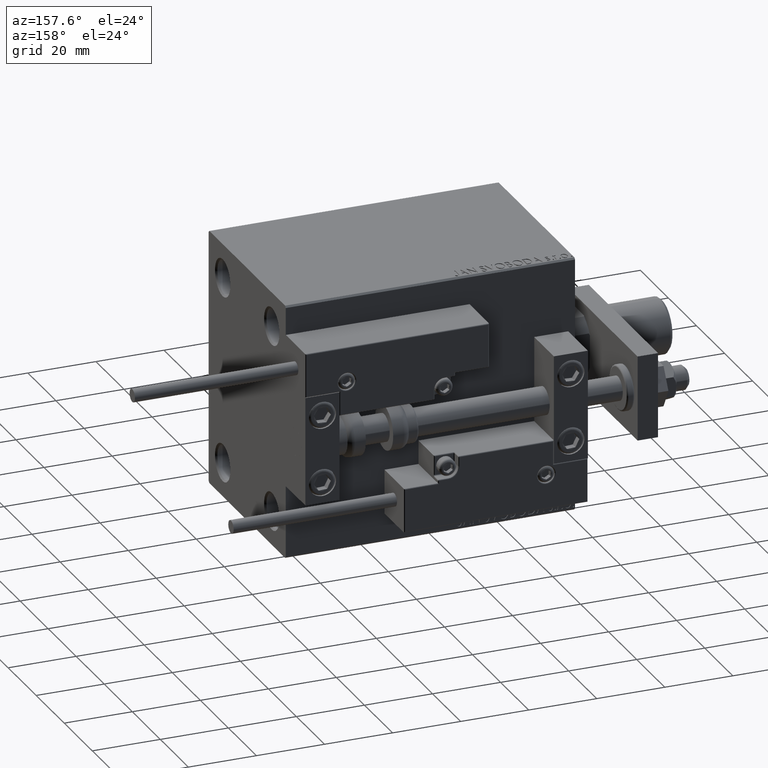
[diagram: clean part render]
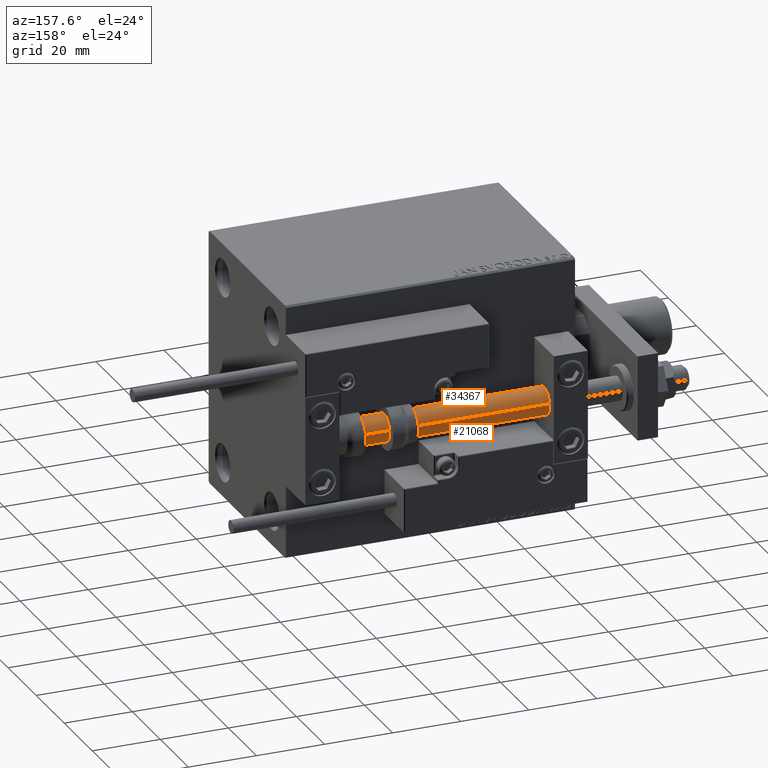
[diagram: same view with one multi-face feature highlighted, each face labeled with its STEP entity id]
A machine part, auxiliary view. The highlighted faces form ONE feature: a constant-radius fillet chain: 2 tangent blend faces with common blend radius 4 mm. The faces share edges in the B-rep.
Their STEP definitions:
[1] entity #21068 (Cylinder):
#1239 = CARTESIAN_POINT ( 'NONE',  ( -4.000000000000000000, 0.000000000000000000, 85.00000000000000000 ) ) ;
#1651 = CARTESIAN_POINT ( 'NONE',  ( -4.000000000000000000, 0.000000000000000000, 85.00000000000000000 ) ) ;
#2633 = LINE ( 'NONE', #50290, #46008 ) ;
#2735 = CIRCLE ( 'NONE', #21900, 4.000000000000000000 ) ;
#4570 = ORIENTED_EDGE ( 'NONE', *, *, #25600, .F. ) ;
#6183 = DIRECTION ( 'NONE',  ( 0.000000000000000000, 0.000000000000000000, 1.000000000000000000 ) ) ;
#11822 = CARTESIAN_POINT ( 'NONE',  ( 0.000000000000000000, 0.000000000000000000, 85.00000000000000000 ) ) ;
#12532 = AXIS2_PLACEMENT_3D ( 'NONE', #18912, #42846, #23058 ) ;
#15225 = ORIENTED_EDGE ( 'NONE', *, *, #24719, .T. ) ;
#15821 = ORIENTED_EDGE ( 'NONE', *, *, #43596, .F. ) ;
#16434 = EDGE_CURVE ( 'NONE', #32545, #17587, #29138, .T. ) ;
#17573 = DIRECTION ( 'NONE',  ( -0.000000000000000000, -0.000000000000000000, -1.000000000000000000 ) ) ;
#17587 = VERTEX_POINT ( 'NONE', #37903 ) ;
#18912 = CARTESIAN_POINT ( 'NONE',  ( 0.000000000000000000, 0.000000000000000000, 2.000000000000029310 ) ) ;
#21068 = ADVANCED_FACE ( 'NONE', ( #34041 ), #30135, .T. ) ;
#21900 = AXIS2_PLACEMENT_3D ( 'NONE', #11822, #6183, #27190 ) ;
#23058 = DIRECTION ( 'NONE',  ( 1.000000000000000000, 0.000000000000000000, 0.000000000000000000 ) ) ;
#24719 = EDGE_CURVE ( 'NONE', #39331, #32545, #37346, .T. ) ;
#25051 = AXIS2_PLACEMENT_3D ( 'NONE', #30900, #42871, #38959 ) ;
#25234 = ORIENTED_EDGE ( 'NONE', *, *, #16434, .T. ) ;
#25600 = EDGE_CURVE ( 'NONE', #39331, #41306, #2735, .T. ) ;
#27190 = DIRECTION ( 'NONE',  ( 1.000000000000000000, 0.000000000000000000, 0.000000000000000000 ) ) ;
#28467 = CARTESIAN_POINT ( 'NONE',  ( -4.000000000000000000, 0.000000000000000000, 2.000000000000029310 ) ) ;
#29138 = CIRCLE ( 'NONE', #12532, 4.000000000000000000 ) ;
#30135 = CYLINDRICAL_SURFACE ( 'NONE', #25051, 4.000000000000000000 ) ;
#30900 = CARTESIAN_POINT ( 'NONE',  ( 0.000000000000000000, 0.000000000000000000, 85.00000000000000000 ) ) ;
#31802 = VECTOR ( 'NONE', #17573, 1000.000000000000000 ) ;
#32545 = VERTEX_POINT ( 'NONE', #28467 ) ;
#34041 = FACE_OUTER_BOUND ( 'NONE', #38497, .T. ) ;
#37346 = LINE ( 'NONE', #1651, #31802 ) ;
#37903 = CARTESIAN_POINT ( 'NONE',  ( 4.000000000000000000, 4.898587196589412829E-16, 2.000000000000029310 ) ) ;
#38497 = EDGE_LOOP ( 'NONE', ( #15821, #4570, #15225, #25234 ) ) ;
#38959 = DIRECTION ( 'NONE',  ( -1.000000000000000000, 0.000000000000000000, 0.000000000000000000 ) ) ;
#39331 = VERTEX_POINT ( 'NONE', #1239 ) ;
#41306 = VERTEX_POINT ( 'NONE', #49019 ) ;
#42846 = DIRECTION ( 'NONE',  ( -0.000000000000000000, -0.000000000000000000, 1.000000000000000000 ) ) ;
#42871 = DIRECTION ( 'NONE',  ( -0.000000000000000000, -0.000000000000000000, -1.000000000000000000 ) ) ;
#43596 = EDGE_CURVE ( 'NONE', #41306, #17587, #2633, .T. ) ;
#46008 = VECTOR ( 'NONE', #46634, 1000.000000000000000 ) ;
#46634 = DIRECTION ( 'NONE',  ( -0.000000000000000000, -0.000000000000000000, -1.000000000000000000 ) ) ;
#49019 = CARTESIAN_POINT ( 'NONE',  ( 4.000000000000000000, 4.898587196589412829E-16, 85.00000000000000000 ) ) ;
#50290 = CARTESIAN_POINT ( 'NONE',  ( 4.000000000000000000, 4.898587196589412829E-16, 85.00000000000000000 ) ) ;
[2] entity #34367 (Cylinder):
#1239 = CARTESIAN_POINT ( 'NONE',  ( -4.000000000000000000, 0.000000000000000000, 85.00000000000000000 ) ) ;
#1651 = CARTESIAN_POINT ( 'NONE',  ( -4.000000000000000000, 0.000000000000000000, 85.00000000000000000 ) ) ;
#2633 = LINE ( 'NONE', #50290, #46008 ) ;
#3768 = CYLINDRICAL_SURFACE ( 'NONE', #7162, 4.000000000000000000 ) ;
#4017 = DIRECTION ( 'NONE',  ( -0.000000000000000000, -0.000000000000000000, -1.000000000000000000 ) ) ;
#5044 = ORIENTED_EDGE ( 'NONE', *, *, #34343, .T. ) ;
#7162 = AXIS2_PLACEMENT_3D ( 'NONE', #39684, #4017, #35802 ) ;
#7921 = DIRECTION ( 'NONE',  ( -0.000000000000000000, -0.000000000000000000, 1.000000000000000000 ) ) ;
#10180 = DIRECTION ( 'NONE',  ( 0.000000000000000000, 0.000000000000000000, 1.000000000000000000 ) ) ;
#11028 = EDGE_LOOP ( 'NONE', ( #27574, #43842, #5044, #28799 ) ) ;
#12161 = AXIS2_PLACEMENT_3D ( 'NONE', #42848, #7921, #19914 ) ;
#17573 = DIRECTION ( 'NONE',  ( -0.000000000000000000, -0.000000000000000000, -1.000000000000000000 ) ) ;
#17587 = VERTEX_POINT ( 'NONE', #37903 ) ;
#19914 = DIRECTION ( 'NONE',  ( 1.000000000000000000, 0.000000000000000000, 0.000000000000000000 ) ) ;
#21637 = DIRECTION ( 'NONE',  ( 1.000000000000000000, 0.000000000000000000, 0.000000000000000000 ) ) ;
#23561 = FACE_OUTER_BOUND ( 'NONE', #11028, .T. ) ;
#24719 = EDGE_CURVE ( 'NONE', #39331, #32545, #37346, .T. ) ;
#27528 = AXIS2_PLACEMENT_3D ( 'NONE', #45843, #10180, #21637 ) ;
#27574 = ORIENTED_EDGE ( 'NONE', *, *, #39023, .F. ) ;
#28467 = CARTESIAN_POINT ( 'NONE',  ( -4.000000000000000000, 0.000000000000000000, 2.000000000000029310 ) ) ;
#28799 = ORIENTED_EDGE ( 'NONE', *, *, #24719, .F. ) ;
#31802 = VECTOR ( 'NONE', #17573, 1000.000000000000000 ) ;
#32545 = VERTEX_POINT ( 'NONE', #28467 ) ;
#34343 = EDGE_CURVE ( 'NONE', #17587, #32545, #42118, .T. ) ;
#34367 = ADVANCED_FACE ( 'NONE', ( #23561 ), #3768, .T. ) ;
#35802 = DIRECTION ( 'NONE',  ( -1.000000000000000000, 0.000000000000000000, 0.000000000000000000 ) ) ;
#37346 = LINE ( 'NONE', #1651, #31802 ) ;
#37903 = CARTESIAN_POINT ( 'NONE',  ( 4.000000000000000000, 4.898587196589412829E-16, 2.000000000000029310 ) ) ;
#39023 = EDGE_CURVE ( 'NONE', #41306, #39331, #48347, .T. ) ;
#39331 = VERTEX_POINT ( 'NONE', #1239 ) ;
#39684 = CARTESIAN_POINT ( 'NONE',  ( 0.000000000000000000, 0.000000000000000000, 85.00000000000000000 ) ) ;
#41306 = VERTEX_POINT ( 'NONE', #49019 ) ;
#42118 = CIRCLE ( 'NONE', #12161, 4.000000000000000000 ) ;
#42848 = CARTESIAN_POINT ( 'NONE',  ( 0.000000000000000000, 0.000000000000000000, 2.000000000000029310 ) ) ;
#43596 = EDGE_CURVE ( 'NONE', #41306, #17587, #2633, .T. ) ;
#43842 = ORIENTED_EDGE ( 'NONE', *, *, #43596, .T. ) ;
#45843 = CARTESIAN_POINT ( 'NONE',  ( 0.000000000000000000, 0.000000000000000000, 85.00000000000000000 ) ) ;
#46008 = VECTOR ( 'NONE', #46634, 1000.000000000000000 ) ;
#46634 = DIRECTION ( 'NONE',  ( -0.000000000000000000, -0.000000000000000000, -1.000000000000000000 ) ) ;
#48347 = CIRCLE ( 'NONE', #27528, 4.000000000000000000 ) ;
#49019 = CARTESIAN_POINT ( 'NONE',  ( 4.000000000000000000, 4.898587196589412829E-16, 85.00000000000000000 ) ) ;
#50290 = CARTESIAN_POINT ( 'NONE',  ( 4.000000000000000000, 4.898587196589412829E-16, 85.00000000000000000 ) ) ;